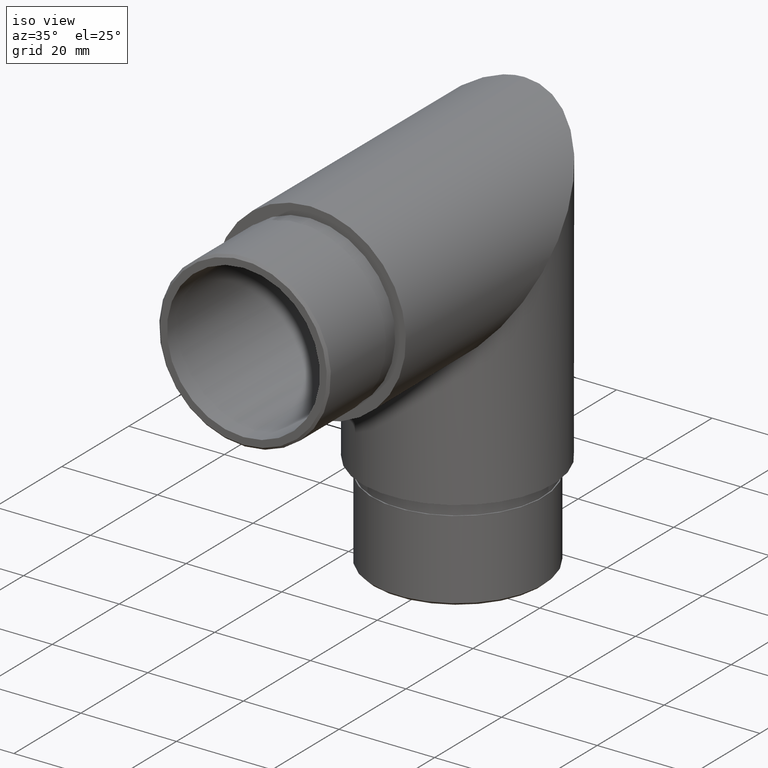
[diagram: clean part render]
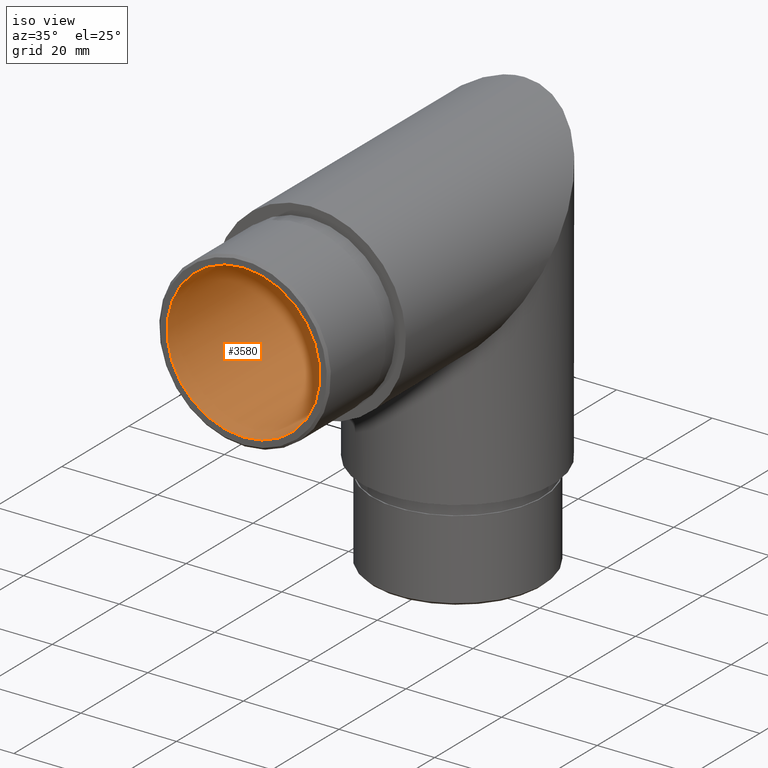
[diagram: same view with one face highlighted and labeled with its STEP entity id]
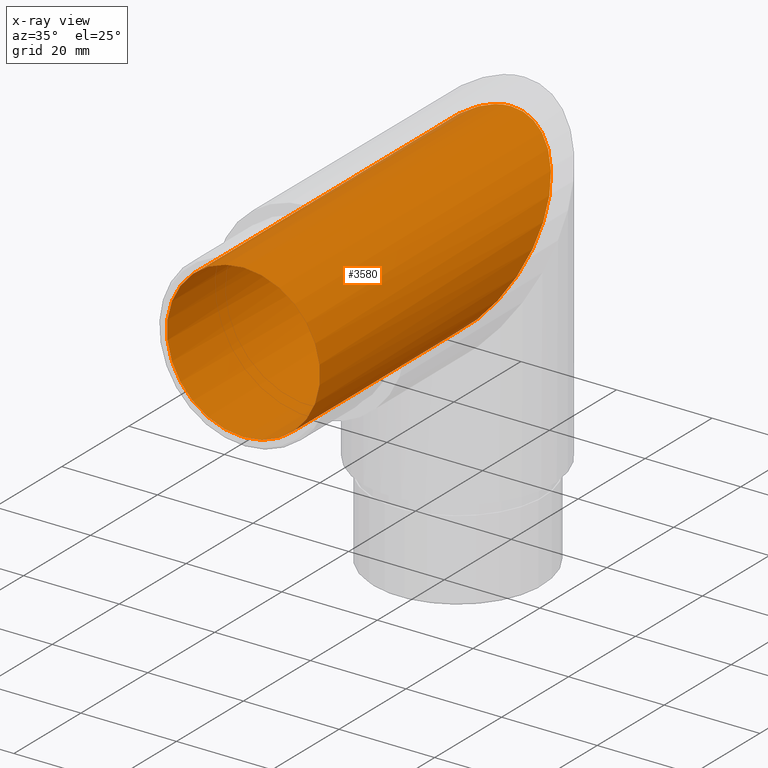
[diagram: x-ray of the same camera — body ghosted, the highlighted face saturated]
A machine part, iso view. The second image highlights one B-rep face of the part: STEP entity #3580.
The next image is the same camera in x-ray: the body ghosted, the highlighted face saturated — about 1% of this face is hidden behind the body in this view.
In plain terms, the highlighted cylindrical surface (bore or boss wall) has radius 16 mm, axis along (-0, -1, -0).
Its self-contained STEP definition (entity closure, byte-faithful):
#248 = EDGE_CURVE ( 'NONE', #2438, #2438, #11130, .T. ) ;
#355 = EDGE_CURVE ( 'NONE', #9777, #9777, #1756, .T. ) ;
#707 = CARTESIAN_POINT ( 'NONE',  ( 0.0000000000000000000, -20.00000000000000000, -16.00000000000000000 ) ) ;
#1756 =( BOUNDED_CURVE ( )  B_SPLINE_CURVE ( 3, ( #11370, #6367, #6407, #12377, #8446, #2591, #7295 ),
 .UNSPECIFIED., .T., .F. ) 
 B_SPLINE_CURVE_WITH_KNOTS ( ( 4, 3, 4 ),
 ( 0.0000000000000000000, 3.141592653589793100, 6.283185307179586200 ),
 .UNSPECIFIED. ) 
 CURVE ( )  GEOMETRIC_REPRESENTATION_ITEM ( )  RATIONAL_B_SPLINE_CURVE ( ( 1.000000000000000000, 0.3333333333333333700, 0.3333333333333333700, 1.000000000000000000, 0.3333333333333333700, 0.3333333333333333700, 1.000000000000000000 ) ) 
 REPRESENTATION_ITEM ( '' )  );
#2438 = VERTEX_POINT ( 'NONE', #707 ) ;
#2591 = CARTESIAN_POINT ( 'NONE',  ( 31.99999999999999600, 27.99999999999994000, -16.00000000000000000 ) ) ;
#2637 = DIRECTION ( 'NONE',  ( 0.0000000000000000000, 0.0000000000000000000, -1.000000000000000000 ) ) ;
#3192 = AXIS2_PLACEMENT_3D ( 'NONE', #6526, #5440, #5481 ) ;
#3511 = DIRECTION ( 'NONE',  ( -0.0000000000000000000, -1.000000000000000000, -0.0000000000000000000 ) ) ;
#3580 = ADVANCED_FACE ( 'NONE', ( #7759, #9425 ), #5905, .F. ) ;
#3667 = ORIENTED_EDGE ( 'NONE', *, *, #355, .T. ) ;
#3686 = AXIS2_PLACEMENT_3D ( 'NONE', #7386, #3511, #2637 ) ;
#4468 = ORIENTED_EDGE ( 'NONE', *, *, #248, .T. ) ;
#5440 = DIRECTION ( 'NONE',  ( 0.0000000000000000000, -1.000000000000000000, 0.0000000000000000000 ) ) ;
#5481 = DIRECTION ( 'NONE',  ( 0.0000000000000000000, 0.0000000000000000000, -1.000000000000000000 ) ) ;
#5530 = CARTESIAN_POINT ( 'NONE',  ( 0.0000000000000000000, 27.99999999999994000, -16.00000000000000000 ) ) ;
#5905 = CYLINDRICAL_SURFACE ( 'NONE', #3686, 16.00000000000000000 ) ;
#6367 = CARTESIAN_POINT ( 'NONE',  ( -31.99999999999999600, 27.99999999999994000, -16.00000000000000000 ) ) ;
#6407 = CARTESIAN_POINT ( 'NONE',  ( -31.99999999999999600, 60.00000000000005000, 15.99999999999999800 ) ) ;
#6526 = CARTESIAN_POINT ( 'NONE',  ( 0.0000000000000000000, -20.00000000000000000, 0.0000000000000000000 ) ) ;
#7295 = CARTESIAN_POINT ( 'NONE',  ( 0.0000000000000000000, 27.99999999999994000, -16.00000000000000000 ) ) ;
#7386 = CARTESIAN_POINT ( 'NONE',  ( 0.0000000000000000000, 100.5685424949238000, 0.0000000000000000000 ) ) ;
#7759 = FACE_OUTER_BOUND ( 'NONE', #11494, .T. ) ;
#8446 = CARTESIAN_POINT ( 'NONE',  ( 31.99999999999999600, 60.00000000000005700, 16.00000000000000400 ) ) ;
#9425 = FACE_OUTER_BOUND ( 'NONE', #9996, .T. ) ;
#9777 = VERTEX_POINT ( 'NONE', #5530 ) ;
#9996 = EDGE_LOOP ( 'NONE', ( #4468 ) ) ;
#11130 = CIRCLE ( 'NONE', #3192, 16.00000000000000000 ) ;
#11370 = CARTESIAN_POINT ( 'NONE',  ( 0.0000000000000000000, 27.99999999999994000, -16.00000000000000000 ) ) ;
#11494 = EDGE_LOOP ( 'NONE', ( #3667 ) ) ;
#12377 = CARTESIAN_POINT ( 'NONE',  ( -1.959434878635765100E-015, 60.00000000000005700, 16.00000000000000000 ) ) ;